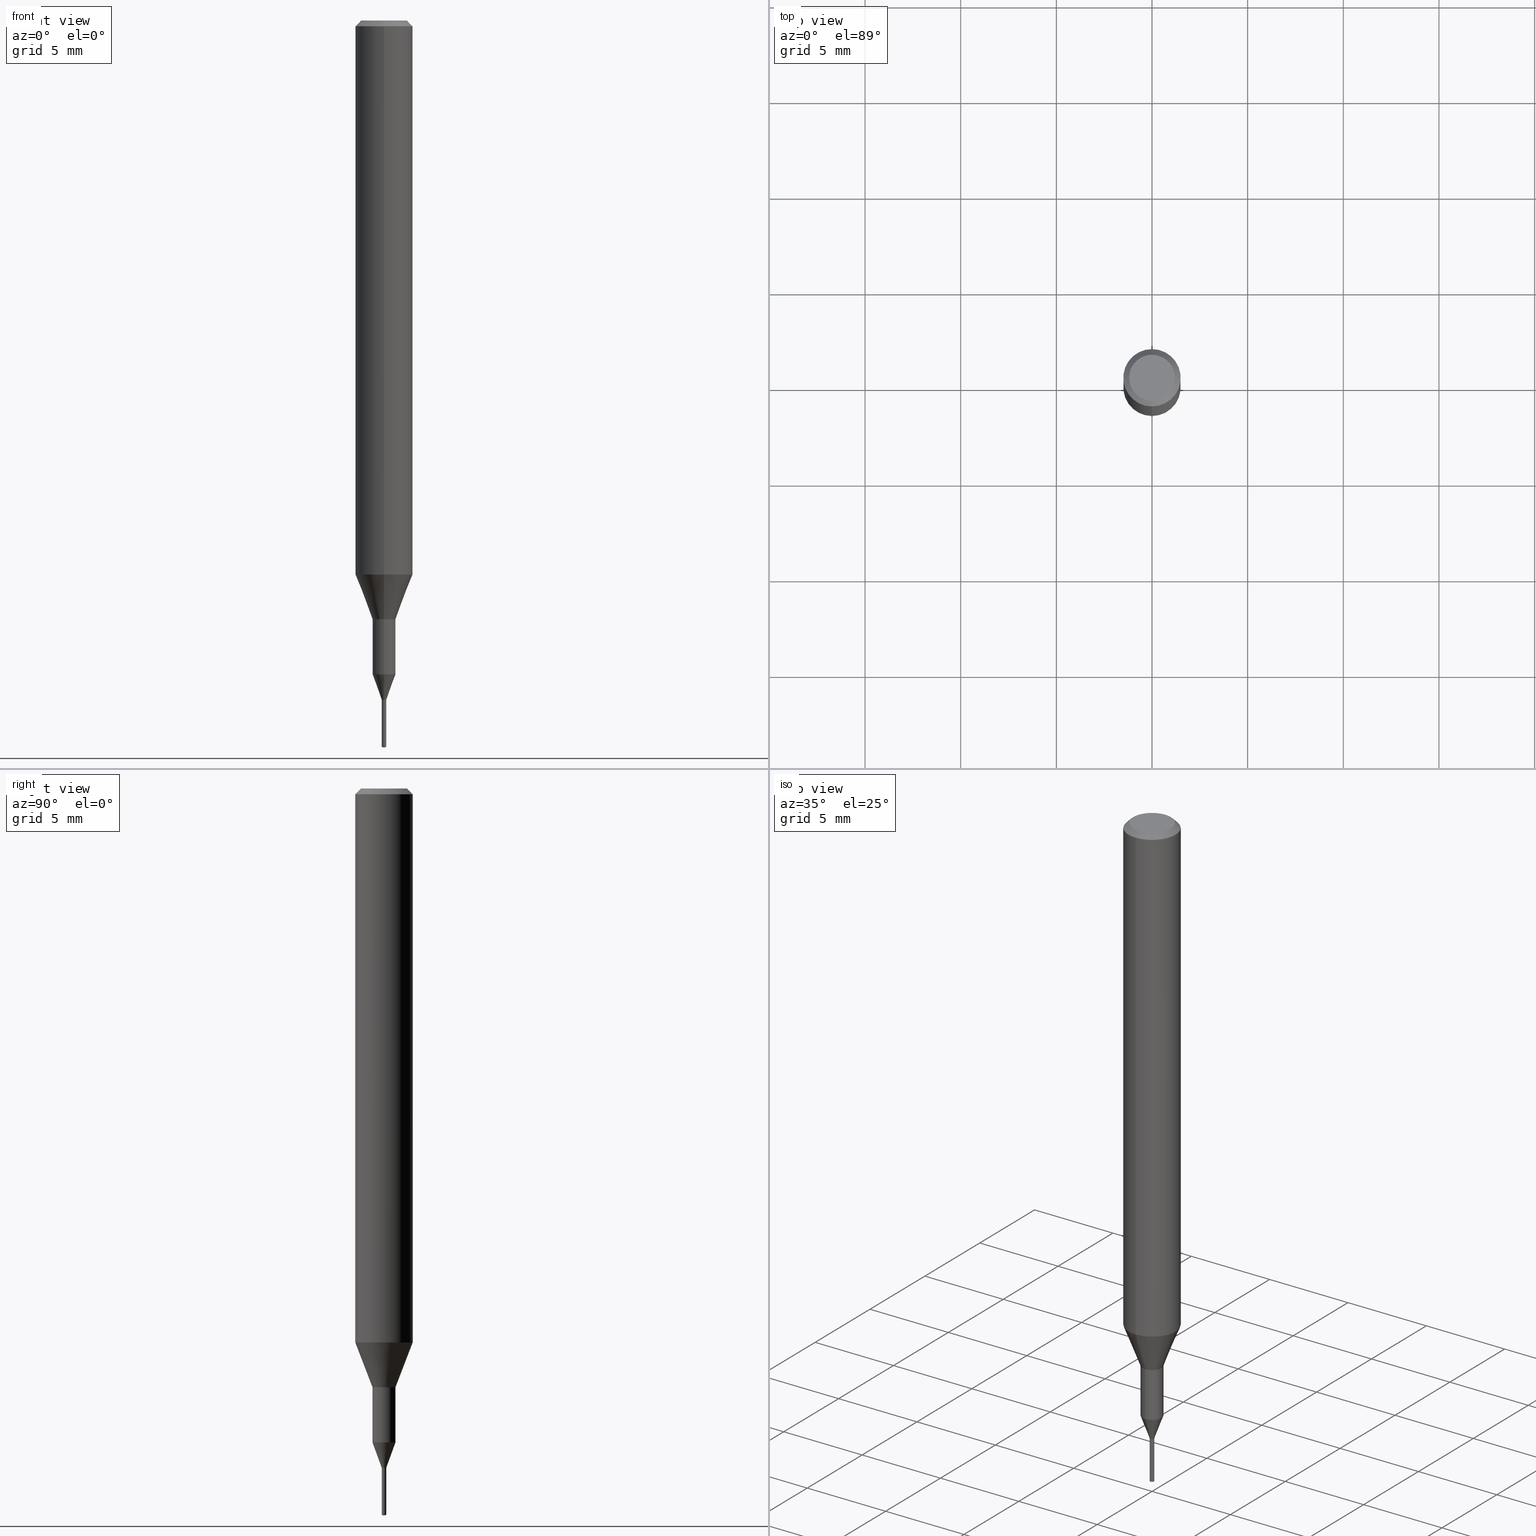
[diagram: canonical four-view strip — front | top / right | iso, engineering-drawing reading convention]
A machine part, canonical four-view strip (front | top / right | iso — engineering-drawing reading convention). The complete STEP part file that produces these views, byte-faithful:
ISO-10303-21;
HEADER;
FILE_DESCRIPTION(('no description'),'unknown implementation level');
FILE_NAME('C-UMD2024-025-Huellk.stp','  ',('CIMSOURCE GmbH'),('CADClick - KiM GmbH - www.kimweb.de'),'unknown preprocess','ACIS','unknown authorization');
FILE_SCHEMA(('automotive_design'));
ENDSEC;
DATA;
#1=MECHANICAL_DESIGN_GEOMETRIC_PRESENTATION_REPRESENTATION(' ',(#14,#15,#16,#17,#18,#19,#20,#21,#22,#23,#24,#25,#26,#27,#28,#29,#30,#31,#32,#33,#34,#35,#36,#37,#38,#39,#40,#41,#42,#43,#44,#45,#46,#47,#48,#49,#50,#51,#52,#53,#54,#55,#56,#57,#58,#59,#60,#61,#62,#63,#64,#65,#66,#67,#68,#69,#70,#71,#72,#73,#74,#75,#76,#77,#78,#79,#80,#81,#82,#83,#84,#85,#86,#87,#88,#89,#90,#91,#92),#10);
#2=PRODUCT_DEFINITION_CONTEXT('',#93,'design');
#3=APPLICATION_PROTOCOL_DEFINITION('INTERNATIONAL STANDARD','automotive_design',1994,#93);
#4=PRODUCT_CATEGORY_RELATIONSHIP('NONE','NONE',#94,#95);
#5=SHAPE_DEFINITION_REPRESENTATION(#96,#97);
#6=PRODUCT_DEFINITION_CONTEXT('',#98,'design');
#7=APPLICATION_PROTOCOL_DEFINITION('INTERNATIONAL STANDARD','automotive_design',1994,#98);
#8=PRODUCT_CATEGORY_RELATIONSHIP('NONE','NONE',#99,#100);
#9=SHAPE_DEFINITION_REPRESENTATION(#101,#102);
#10= (GEOMETRIC_REPRESENTATION_CONTEXT(3)GLOBAL_UNCERTAINTY_ASSIGNED_CONTEXT((#105))GLOBAL_UNIT_ASSIGNED_CONTEXT((#107,#108,#109))REPRESENTATION_CONTEXT('NONE','WORKSPACE'));
#14=STYLED_ITEM('',(#111),#112);
#15=STYLED_ITEM('',(#113),#114);
#16=STYLED_ITEM('',(#115),#116);
#17=STYLED_ITEM('',(#117),#118);
#18=STYLED_ITEM('',(#119),#120);
#19=STYLED_ITEM('',(#121),#122);
#20=STYLED_ITEM('',(#123),#124);
#21=STYLED_ITEM('',(#125),#126);
#22=STYLED_ITEM('',(#127),#128);
#23=STYLED_ITEM('',(#129),#130);
#24=STYLED_ITEM('',(#131),#132);
#25=STYLED_ITEM('',(#133),#134);
#26=STYLED_ITEM('',(#135),#136);
#27=STYLED_ITEM('',(#137),#138);
#28=STYLED_ITEM('',(#139),#140);
#29=STYLED_ITEM('',(#141),#142);
#30=STYLED_ITEM('',(#143),#144);
#31=STYLED_ITEM('',(#145),#146);
#32=STYLED_ITEM('',(#147),#148);
#33=STYLED_ITEM('',(#149),#150);
#34=STYLED_ITEM('',(#151),#152);
#35=STYLED_ITEM('',(#153),#154);
#36=STYLED_ITEM('',(#155),#156);
#37=STYLED_ITEM('',(#157),#158);
#38=STYLED_ITEM('',(#159),#160);
#39=STYLED_ITEM('',(#161),#162);
#40=STYLED_ITEM('',(#163),#164);
#41=STYLED_ITEM('',(#165),#166);
#42=STYLED_ITEM('',(#167),#168);
#43=STYLED_ITEM('',(#169),#170);
#44=STYLED_ITEM('',(#171),#172);
#45=STYLED_ITEM('',(#173),#174);
#46=STYLED_ITEM('',(#175),#176);
#47=STYLED_ITEM('',(#177),#178);
#48=STYLED_ITEM('',(#179),#180);
#49=STYLED_ITEM('',(#181),#182);
#50=STYLED_ITEM('',(#183),#184);
#51=STYLED_ITEM('',(#185),#186);
#52=STYLED_ITEM('',(#187),#188);
#53=STYLED_ITEM('',(#189),#190);
#54=STYLED_ITEM('',(#191),#192);
#55=STYLED_ITEM('',(#193),#194);
#56=STYLED_ITEM('',(#195),#196);
#57=STYLED_ITEM('',(#197),#198);
#58=STYLED_ITEM('',(#199),#200);
#59=STYLED_ITEM('',(#201),#202);
#60=STYLED_ITEM('',(#203),#204);
#61=STYLED_ITEM('',(#205),#206);
#62=STYLED_ITEM('',(#207),#208);
#63=STYLED_ITEM('',(#209),#210);
#64=STYLED_ITEM('',(#211),#212);
#65=STYLED_ITEM('',(#213),#214);
#66=STYLED_ITEM('',(#215),#216);
#67=STYLED_ITEM('',(#217),#218);
#68=STYLED_ITEM('',(#219),#220);
#69=STYLED_ITEM('',(#221),#222);
#70=STYLED_ITEM('',(#223),#224);
#71=STYLED_ITEM('',(#225),#226);
#72=STYLED_ITEM('',(#227),#228);
#73=STYLED_ITEM('',(#229),#230);
#74=STYLED_ITEM('',(#231),#232);
#75=STYLED_ITEM('',(#233),#234);
#76=STYLED_ITEM('',(#235),#236);
#77=STYLED_ITEM('',(#237),#238);
#78=STYLED_ITEM('',(#239),#240);
#79=STYLED_ITEM('',(#241),#242);
#80=STYLED_ITEM('',(#243),#244);
#81=STYLED_ITEM('',(#245),#246);
#82=STYLED_ITEM('',(#247),#248);
#83=STYLED_ITEM('',(#249),#250);
#84=STYLED_ITEM('',(#251),#252);
#85=STYLED_ITEM('',(#253),#254);
#86=STYLED_ITEM('',(#255),#256);
#87=STYLED_ITEM('',(#257),#258);
#88=STYLED_ITEM('',(#259),#260);
#89=STYLED_ITEM('',(#261),#262);
#90=STYLED_ITEM('',(#263),#264);
#91=STYLED_ITEM('',(#265),#266);
#92=STYLED_ITEM('',(#267),#268);
#93=APPLICATION_CONTEXT(' ');
#94=PRODUCT_CATEGORY('part','NONE');
#95=PRODUCT_RELATED_PRODUCT_CATEGORY('detail',' ',(#269));
#96=PRODUCT_DEFINITION_SHAPE('NONE','NONE',#270);
#97=ADVANCED_BREP_SHAPE_REPRESENTATION('1',(#254,#271),#10);
#98=APPLICATION_CONTEXT(' ');
#99=PRODUCT_CATEGORY('part','NONE');
#100=PRODUCT_RELATED_PRODUCT_CATEGORY('detail',' ',(#272));
#101=PRODUCT_DEFINITION_SHAPE('NONE','NONE',#273);
#102=ADVANCED_BREP_SHAPE_REPRESENTATION('2',(#168,#274),#10);
#105=UNCERTAINTY_MEASURE_WITH_UNIT(LENGTH_MEASURE(1.0E-006),#107,'','');
#107= (CONVERSION_BASED_UNIT('MILLIMETRE',#277)LENGTH_UNIT()NAMED_UNIT(#280));
#108= (NAMED_UNIT(#282)PLANE_ANGLE_UNIT()SI_UNIT($,.RADIAN.));
#109= (NAMED_UNIT(#282)SOLID_ANGLE_UNIT()SI_UNIT($,.STERADIAN.));
#111=PRESENTATION_STYLE_ASSIGNMENT((#288));
#112=ADVANCED_FACE('',(#289),#290,.T.);
#113=PRESENTATION_STYLE_ASSIGNMENT((#291));
#114=VERTEX_POINT('',#292);
#115=PRESENTATION_STYLE_ASSIGNMENT((#293));
#116=VERTEX_POINT('',#294);
#117=PRESENTATION_STYLE_ASSIGNMENT((#295));
#118=VERTEX_POINT('',#296);
#119=PRESENTATION_STYLE_ASSIGNMENT((#297));
#120=VERTEX_POINT('',#298);
#121=PRESENTATION_STYLE_ASSIGNMENT((#299));
#122=ADVANCED_FACE('',(#300),#301,.T.);
#123=PRESENTATION_STYLE_ASSIGNMENT((#302));
#124=ADVANCED_FACE('',(#303),#304,.T.);
#125=PRESENTATION_STYLE_ASSIGNMENT((#305));
#126=ADVANCED_FACE('',(#306),#307,.T.);
#127=PRESENTATION_STYLE_ASSIGNMENT((#308));
#128=VERTEX_POINT('',#309);
#129=PRESENTATION_STYLE_ASSIGNMENT((#310));
#130=EDGE_CURVE('',#114,#120,#311,.T.);
#131=PRESENTATION_STYLE_ASSIGNMENT((#312));
#132=ADVANCED_FACE('',(#313),#314,.T.);
#133=PRESENTATION_STYLE_ASSIGNMENT((#315));
#134=ADVANCED_FACE('',(#316),#317,.T.);
#135=PRESENTATION_STYLE_ASSIGNMENT((#318));
#136=ADVANCED_FACE('',(#319),#320,.T.);
#137=PRESENTATION_STYLE_ASSIGNMENT((#321));
#138=EDGE_CURVE('',#260,#250,#322,.T.);
#139=PRESENTATION_STYLE_ASSIGNMENT((#323));
#140=VERTEX_POINT('',#324);
#141=PRESENTATION_STYLE_ASSIGNMENT((#325));
#142=ADVANCED_FACE('',(#326),#327,.T.);
#143=PRESENTATION_STYLE_ASSIGNMENT((#328));
#144=EDGE_CURVE('',#176,#128,#329,.T.);
#145=PRESENTATION_STYLE_ASSIGNMENT((#330));
#146=ADVANCED_FACE('',(#331),#332,.T.);
#147=PRESENTATION_STYLE_ASSIGNMENT((#333));
#148=VERTEX_POINT('',#334);
#149=PRESENTATION_STYLE_ASSIGNMENT((#335));
#150=EDGE_CURVE('',#184,#190,#336,.T.);
#151=PRESENTATION_STYLE_ASSIGNMENT((#337));
#152=ADVANCED_FACE('',(#338),#339,.T.);
#153=PRESENTATION_STYLE_ASSIGNMENT((#340));
#154=VERTEX_POINT('',#341);
#155=PRESENTATION_STYLE_ASSIGNMENT((#342));
#156=EDGE_CURVE('',#228,#186,#343,.T.);
#157=PRESENTATION_STYLE_ASSIGNMENT((#344));
#158=ADVANCED_FACE('',(#345),#346,.T.);
#159=PRESENTATION_STYLE_ASSIGNMENT((#347));
#160=EDGE_CURVE('',#266,#148,#348,.T.);
#161=PRESENTATION_STYLE_ASSIGNMENT((#349));
#162=ADVANCED_FACE('',(#350),#351,.T.);
#163=PRESENTATION_STYLE_ASSIGNMENT((#352));
#164=EDGE_CURVE('',#214,#260,#353,.T.);
#165=PRESENTATION_STYLE_ASSIGNMENT((#354));
#166=EDGE_CURVE('',#140,#196,#355,.T.);
#167=PRESENTATION_STYLE_ASSIGNMENT((#356));
#168=MANIFOLD_SOLID_BREP('2',#357);
#169=PRESENTATION_STYLE_ASSIGNMENT((#358));
#170=ADVANCED_FACE('',(#359),#360,.T.);
#171=PRESENTATION_STYLE_ASSIGNMENT((#361));
#172=VERTEX_POINT('',#362);
#173=PRESENTATION_STYLE_ASSIGNMENT((#363));
#174=EDGE_CURVE('',#186,#228,#364,.T.);
#175=PRESENTATION_STYLE_ASSIGNMENT((#365));
#176=VERTEX_POINT('',#366);
#177=PRESENTATION_STYLE_ASSIGNMENT((#367));
#178=EDGE_CURVE('',#250,#240,#368,.T.);
#179=PRESENTATION_STYLE_ASSIGNMENT((#369));
#180=EDGE_CURVE('',#116,#172,#370,.T.);
#181=PRESENTATION_STYLE_ASSIGNMENT((#371));
#182=EDGE_CURVE('',#196,#140,#372,.T.);
#183=PRESENTATION_STYLE_ASSIGNMENT((#373));
#184=VERTEX_POINT('',#374);
#185=PRESENTATION_STYLE_ASSIGNMENT((#375));
#186=VERTEX_POINT('',#376);
#187=PRESENTATION_STYLE_ASSIGNMENT((#377));
#188=EDGE_CURVE('',#240,#260,#378,.T.);
#189=PRESENTATION_STYLE_ASSIGNMENT((#379));
#190=VERTEX_POINT('',#380);
#191=PRESENTATION_STYLE_ASSIGNMENT((#381));
#192=ADVANCED_FACE('',(#382),#383,.T.);
#193=PRESENTATION_STYLE_ASSIGNMENT((#384));
#194=EDGE_CURVE('',#172,#148,#385,.T.);
#195=PRESENTATION_STYLE_ASSIGNMENT((#386));
#196=VERTEX_POINT('',#387);
#197=PRESENTATION_STYLE_ASSIGNMENT((#388));
#198=EDGE_CURVE('',#190,#184,#389,.T.);
#199=PRESENTATION_STYLE_ASSIGNMENT((#390));
#200=EDGE_CURVE('',#128,#184,#391,.T.);
#201=PRESENTATION_STYLE_ASSIGNMENT((#392));
#202=EDGE_CURVE('',#240,#118,#393,.T.);
#203=PRESENTATION_STYLE_ASSIGNMENT((#394));
#204=ADVANCED_FACE('',(#395),#396,.T.);
#205=PRESENTATION_STYLE_ASSIGNMENT((#397));
#206=EDGE_CURVE('',#148,#196,#398,.T.);
#207=PRESENTATION_STYLE_ASSIGNMENT((#399));
#208=EDGE_CURVE('',#190,#176,#400,.T.);
#209=PRESENTATION_STYLE_ASSIGNMENT((#401));
#210=EDGE_CURVE('',#248,#154,#402,.T.);
#211=PRESENTATION_STYLE_ASSIGNMENT((#403));
#212=EDGE_CURVE('',#120,#214,#404,.T.);
#213=PRESENTATION_STYLE_ASSIGNMENT((#405));
#214=VERTEX_POINT('',#406);
#215=PRESENTATION_STYLE_ASSIGNMENT((#407));
#216=EDGE_CURVE('',#266,#248,#408,.T.);
#217=PRESENTATION_STYLE_ASSIGNMENT((#409));
#218=ADVANCED_FACE('',(#410),#411,.T.);
#219=PRESENTATION_STYLE_ASSIGNMENT((#412));
#220=EDGE_CURVE('',#154,#116,#413,.T.);
#221=PRESENTATION_STYLE_ASSIGNMENT((#414));
#222=EDGE_CURVE('',#148,#266,#415,.T.);
#223=PRESENTATION_STYLE_ASSIGNMENT((#416));
#224=EDGE_CURVE('',#116,#154,#417,.T.);
#225=PRESENTATION_STYLE_ASSIGNMENT((#418));
#226=EDGE_CURVE('',#118,#214,#419,.T.);
#227=PRESENTATION_STYLE_ASSIGNMENT((#420));
#228=VERTEX_POINT('',#421);
#229=PRESENTATION_STYLE_ASSIGNMENT((#422));
#230=EDGE_CURVE('',#248,#172,#423,.T.);
#231=PRESENTATION_STYLE_ASSIGNMENT((#424));
#232=ADVANCED_FACE('',(#425),#426,.T.);
#233=PRESENTATION_STYLE_ASSIGNMENT((#427));
#234=EDGE_CURVE('',#140,#266,#428,.T.);
#235=PRESENTATION_STYLE_ASSIGNMENT((#429));
#236=EDGE_CURVE('',#128,#176,#430,.T.);
#237=PRESENTATION_STYLE_ASSIGNMENT((#431));
#238=ADVANCED_FACE('',(#432),#433,.T.);
#239=PRESENTATION_STYLE_ASSIGNMENT((#434));
#240=VERTEX_POINT('',#435);
#241=PRESENTATION_STYLE_ASSIGNMENT((#436));
#242=EDGE_CURVE('',#120,#114,#437,.T.);
#243=PRESENTATION_STYLE_ASSIGNMENT((#438));
#244=EDGE_CURVE('',#186,#128,#439,.T.);
#245=PRESENTATION_STYLE_ASSIGNMENT((#440));
#246=ADVANCED_FACE('',(#441,#442),#443,.T.);
#247=PRESENTATION_STYLE_ASSIGNMENT((#444));
#248=VERTEX_POINT('',#445);
#249=PRESENTATION_STYLE_ASSIGNMENT((#446));
#250=VERTEX_POINT('',#447);
#251=PRESENTATION_STYLE_ASSIGNMENT((#448));
#252=EDGE_CURVE('',#214,#118,#449,.T.);
#253=PRESENTATION_STYLE_ASSIGNMENT((#450));
#254=MANIFOLD_SOLID_BREP('1',#451);
#255=PRESENTATION_STYLE_ASSIGNMENT((#452));
#256=EDGE_CURVE('',#118,#114,#453,.T.);
#257=PRESENTATION_STYLE_ASSIGNMENT((#454));
#258=EDGE_CURVE('',#260,#240,#455,.T.);
#259=PRESENTATION_STYLE_ASSIGNMENT((#456));
#260=VERTEX_POINT('',#457);
#261=PRESENTATION_STYLE_ASSIGNMENT((#458));
#262=EDGE_CURVE('',#176,#228,#459,.T.);
#263=PRESENTATION_STYLE_ASSIGNMENT((#460));
#264=EDGE_CURVE('',#172,#248,#461,.T.);
#265=PRESENTATION_STYLE_ASSIGNMENT((#462));
#266=VERTEX_POINT('',#463);
#267=PRESENTATION_STYLE_ASSIGNMENT((#464));
#268=ADVANCED_FACE('',(#465),#466,.T.);
#269=PRODUCT('1','1','PART-1-DESC',(#467));
#270=PRODUCT_DEFINITION('NONE','NONE',#468,#2);
#271=AXIS2_PLACEMENT_3D('',#469,#470,#471);
#272=PRODUCT('2','2','PART-2-DESC',(#472));
#273=PRODUCT_DEFINITION('NONE','NONE',#473,#6);
#274=AXIS2_PLACEMENT_3D('',#474,#475,#476);
#277=LENGTH_MEASURE_WITH_UNIT(LENGTH_MEASURE(1.0),#477);
#280=DIMENSIONAL_EXPONENTS(1.0,0.0,0.0,0.0,0.0,0.0,0.0);
#282=DIMENSIONAL_EXPONENTS(0.0,0.0,0.0,0.0,0.0,0.0,0.0);
#288=SURFACE_STYLE_USAGE(.BOTH.,#478);
#289=FACE_OUTER_BOUND('',#479,.T.);
#290=CONICAL_SURFACE('',#480,0.06,1.30899696303431);
#291=POINT_STYLE(' ',#481,POSITIVE_LENGTH_MEASURE(1.0E-006),#482);
#292=CARTESIAN_POINT('',(0.121036391205459,1.48221933713936E-017,-35.4999));
#293=POINT_STYLE(' ',#483,POSITIVE_LENGTH_MEASURE(1.0E-006),#484);
#294=CARTESIAN_POINT('',(7.34763812293426E-017,-0.6,-31.3));
#295=POINT_STYLE(' ',#485,POSITIVE_LENGTH_MEASURE(1.0E-006),#486);
#296=CARTESIAN_POINT('',(0.12,1.46952762458685E-017,-35.5));
#297=POINT_STYLE(' ',#487,POSITIVE_LENGTH_MEASURE(1.0E-006),#488);
#298=CARTESIAN_POINT('',(-0.121036391205459,0.0,-35.4999));
#299=SURFACE_STYLE_USAGE(.BOTH.,#489);
#300=FACE_OUTER_BOUND('',#490,.T.);
#301=CONICAL_SURFACE('',#491,1.35,0.785398163397447);
#302=SURFACE_STYLE_USAGE(.BOTH.,#492);
#303=FACE_OUTER_BOUND('',#493,.T.);
#304=CYLINDRICAL_SURFACE('',#494,0.59995);
#305=SURFACE_STYLE_USAGE(.BOTH.,#495);
#306=FACE_OUTER_BOUND('',#496,.T.);
#307=CONICAL_SURFACE('',#497,0.359993193707354,0.348981000659122);
#308=POINT_STYLE(' ',#498,POSITIVE_LENGTH_MEASURE(1.0E-006),#499);
#309=CARTESIAN_POINT('',(7.34702581975735E-017,-0.59995,-34.181));
#310=CURVE_STYLE('',#500,POSITIVE_LENGTH_MEASURE(1.0E-006),#501);
#311=CIRCLE('',#502,0.121036391205459);
#312=SURFACE_STYLE_USAGE(.BOTH.,#503);
#313=FACE_OUTER_BOUND('',#504,.T.);
#314=CONICAL_SURFACE('',#505,0.359993193707354,0.348981000659122);
#315=SURFACE_STYLE_USAGE(.BOTH.,#506);
#316=FACE_OUTER_BOUND('',#507,.T.);
#317=PLANE('',#508);
#318=SURFACE_STYLE_USAGE(.BOTH.,#509);
#319=FACE_OUTER_BOUND('',#510,.T.);
#320=CONICAL_SURFACE('',#511,1.05,0.366459241971866);
#321=CURVE_STYLE('',#512,POSITIVE_LENGTH_MEASURE(1.0E-006),#513);
#322=LINE('',#514,#515);
#323=POINT_STYLE(' ',#516,POSITIVE_LENGTH_MEASURE(1.0E-006),#517);
#324=CARTESIAN_POINT('',(0.0,1.2,0.0));
#325=SURFACE_STYLE_USAGE(.BOTH.,#518);
#326=FACE_OUTER_BOUND('',#519,.T.);
#327=CONICAL_SURFACE('',#520,1.35,0.785398163397447);
#328=CURVE_STYLE('',#521,POSITIVE_LENGTH_MEASURE(1.0E-006),#522);
#329=CIRCLE('',#523,0.59995);
#330=SURFACE_STYLE_USAGE(.BOTH.,#524);
#331=FACE_OUTER_BOUND('',#525,.T.);
#332=CONICAL_SURFACE('',#526,1.05,0.366459241971866);
#333=POINT_STYLE(' ',#527,POSITIVE_LENGTH_MEASURE(1.0E-006),#528);
#334=CARTESIAN_POINT('',(1.83690953073357E-016,-1.5,-0.300000000000001));
#335=CURVE_STYLE('',#529,POSITIVE_LENGTH_MEASURE(1.0E-006),#530);
#336=CIRCLE('',#531,0.59995);
#337=SURFACE_STYLE_USAGE(.BOTH.,#532);
#338=FACE_OUTER_BOUND('',#533,.T.);
#339=CONICAL_SURFACE('',#534,0.120518195602729,1.47460544232733);
#340=POINT_STYLE(' ',#535,POSITIVE_LENGTH_MEASURE(1.0E-006),#536);
#341=CARTESIAN_POINT('',(0.0,0.6,-31.3));
#342=CURVE_STYLE('',#537,POSITIVE_LENGTH_MEASURE(1.0E-006),#538);
#343=CIRCLE('',#539,0.120036387414708);
#344=SURFACE_STYLE_USAGE(.BOTH.,#540);
#345=FACE_OUTER_BOUND('',#541,.T.);
#346=PLANE('',#542);
#347=CURVE_STYLE('',#543,POSITIVE_LENGTH_MEASURE(1.0E-006),#544);
#348=CIRCLE('',#545,1.5);
#349=SURFACE_STYLE_USAGE(.BOTH.,#546);
#350=FACE_OUTER_BOUND('',#547,.T.);
#351=CYLINDRICAL_SURFACE('',#548,0.12);
#352=CURVE_STYLE('',#549,POSITIVE_LENGTH_MEASURE(1.0E-006),#550);
#353=LINE('',#551,#552);
#354=CURVE_STYLE('',#553,POSITIVE_LENGTH_MEASURE(1.0E-006),#554);
#355=CIRCLE('',#555,1.2);
#356=SURFACE_STYLE_USAGE(.BOTH.,#556);
#357=CLOSED_SHELL('',(#238,#204,#152,#158,#170,#162,#112));
#358=SURFACE_STYLE_USAGE(.BOTH.,#557);
#359=FACE_OUTER_BOUND('',#558,.T.);
#360=CONICAL_SURFACE('',#559,0.120518195602729,1.47460544232733);
#361=POINT_STYLE(' ',#560,POSITIVE_LENGTH_MEASURE(1.0E-006),#561);
#362=CARTESIAN_POINT('',(1.83690953073357E-016,-1.5,-28.955));
#363=CURVE_STYLE('',#562,POSITIVE_LENGTH_MEASURE(1.0E-006),#563);
#364=CIRCLE('',#564,0.120036387414708);
#365=POINT_STYLE(' ',#565,POSITIVE_LENGTH_MEASURE(1.0E-006),#566);
#366=CARTESIAN_POINT('',(0.0,0.59995,-34.181));
#367=CURVE_STYLE('',#567,POSITIVE_LENGTH_MEASURE(1.0E-006),#568);
#368=LINE('',#569,#570);
#369=CURVE_STYLE('',#571,POSITIVE_LENGTH_MEASURE(1.0E-006),#572);
#370=LINE('',#573,#574);
#371=CURVE_STYLE('',#575,POSITIVE_LENGTH_MEASURE(1.0E-006),#576);
#372=CIRCLE('',#577,1.2);
#373=POINT_STYLE(' ',#578,POSITIVE_LENGTH_MEASURE(1.0E-006),#579);
#374=CARTESIAN_POINT('',(7.34702581975735E-017,-0.59995,-31.3));
#375=POINT_STYLE(' ',#580,POSITIVE_LENGTH_MEASURE(1.0E-006),#581);
#376=CARTESIAN_POINT('',(1.46997322717936E-017,-0.120036387414708,-35.4999));
#377=CURVE_STYLE('',#582,POSITIVE_LENGTH_MEASURE(1.0E-006),#583);
#378=CIRCLE('',#584,0.12);
#379=POINT_STYLE(' ',#585,POSITIVE_LENGTH_MEASURE(1.0E-006),#586);
#380=CARTESIAN_POINT('',(0.0,0.59995,-31.3));
#381=SURFACE_STYLE_USAGE(.BOTH.,#587);
#382=FACE_OUTER_BOUND('',#588,.T.);
#383=CYLINDRICAL_SURFACE('',#589,1.5);
#384=CURVE_STYLE('',#590,POSITIVE_LENGTH_MEASURE(1.0E-006),#591);
#385=LINE('',#592,#593);
#386=POINT_STYLE(' ',#594,POSITIVE_LENGTH_MEASURE(1.0E-006),#595);
#387=CARTESIAN_POINT('',(1.46952762458685E-016,-1.2,0.0));
#388=CURVE_STYLE('',#596,POSITIVE_LENGTH_MEASURE(1.0E-006),#597);
#389=CIRCLE('',#598,0.59995);
#390=CURVE_STYLE('',#599,POSITIVE_LENGTH_MEASURE(1.0E-006),#600);
#391=LINE('',#601,#602);
#392=CURVE_STYLE('',#603,POSITIVE_LENGTH_MEASURE(1.0E-006),#604);
#393=LINE('',#605,#606);
#394=SURFACE_STYLE_USAGE(.BOTH.,#607);
#395=FACE_OUTER_BOUND('',#608,.T.);
#396=CYLINDRICAL_SURFACE('',#609,0.12);
#397=CURVE_STYLE('',#610,POSITIVE_LENGTH_MEASURE(1.0E-006),#611);
#398=LINE('',#612,#613);
#399=CURVE_STYLE('',#614,POSITIVE_LENGTH_MEASURE(1.0E-006),#615);
#400=LINE('',#616,#617);
#401=CURVE_STYLE('',#618,POSITIVE_LENGTH_MEASURE(1.0E-006),#619);
#402=LINE('',#620,#621);
#403=CURVE_STYLE('',#622,POSITIVE_LENGTH_MEASURE(1.0E-006),#623);
#404=LINE('',#624,#625);
#405=POINT_STYLE(' ',#626,POSITIVE_LENGTH_MEASURE(1.0E-006),#627);
#406=CARTESIAN_POINT('',(-0.12,0.0,-35.5));
#407=CURVE_STYLE('',#628,POSITIVE_LENGTH_MEASURE(1.0E-006),#629);
#408=LINE('',#630,#631);
#409=SURFACE_STYLE_USAGE(.BOTH.,#632);
#410=FACE_OUTER_BOUND('',#633,.T.);
#411=PLANE('',#634);
#412=CURVE_STYLE('',#635,POSITIVE_LENGTH_MEASURE(1.0E-006),#636);
#413=CIRCLE('',#637,0.6);
#414=CURVE_STYLE('',#638,POSITIVE_LENGTH_MEASURE(1.0E-006),#639);
#415=CIRCLE('',#640,1.5);
#416=CURVE_STYLE('',#641,POSITIVE_LENGTH_MEASURE(1.0E-006),#642);
#417=CIRCLE('',#643,0.6);
#418=CURVE_STYLE('',#644,POSITIVE_LENGTH_MEASURE(1.0E-006),#645);
#419=CIRCLE('',#646,0.12);
#420=POINT_STYLE(' ',#647,POSITIVE_LENGTH_MEASURE(1.0E-006),#648);
#421=CARTESIAN_POINT('',(0.0,0.120036387414708,-35.4999));
#422=CURVE_STYLE('',#649,POSITIVE_LENGTH_MEASURE(1.0E-006),#650);
#423=CIRCLE('',#651,1.5);
#424=SURFACE_STYLE_USAGE(.BOTH.,#652);
#425=FACE_OUTER_BOUND('',#653,.T.);
#426=CYLINDRICAL_SURFACE('',#654,1.5);
#427=CURVE_STYLE('',#655,POSITIVE_LENGTH_MEASURE(1.0E-006),#656);
#428=LINE('',#657,#658);
#429=CURVE_STYLE('',#659,POSITIVE_LENGTH_MEASURE(1.0E-006),#660);
#430=CIRCLE('',#661,0.59995);
#431=SURFACE_STYLE_USAGE(.BOTH.,#662);
#432=FACE_OUTER_BOUND('',#663,.T.);
#433=CONICAL_SURFACE('',#664,0.06,1.30899696303431);
#434=POINT_STYLE(' ',#665,POSITIVE_LENGTH_MEASURE(1.0E-006),#666);
#435=CARTESIAN_POINT('',(0.12,1.46952762458685E-017,-37.9678461));
#436=CURVE_STYLE('',#667,POSITIVE_LENGTH_MEASURE(1.0E-006),#668);
#437=CIRCLE('',#669,0.121036391205459);
#438=CURVE_STYLE('',#670,POSITIVE_LENGTH_MEASURE(1.0E-006),#671);
#439=LINE('',#672,#673);
#440=SURFACE_STYLE_USAGE(.BOTH.,#674);
#441=FACE_BOUND('',#675,.T.);
#442=FACE_OUTER_BOUND('',#676,.T.);
#443=PLANE('',#677);
#444=POINT_STYLE(' ',#678,POSITIVE_LENGTH_MEASURE(1.0E-006),#679);
#445=CARTESIAN_POINT('',(0.0,1.5,-28.955));
#446=POINT_STYLE(' ',#680,POSITIVE_LENGTH_MEASURE(1.0E-006),#681);
#447=CARTESIAN_POINT('',(0.0,0.0,-38.0));
#448=CURVE_STYLE('',#682,POSITIVE_LENGTH_MEASURE(1.0E-006),#683);
#449=CIRCLE('',#684,0.12);
#450=SURFACE_STYLE_USAGE(.BOTH.,#685);
#451=CLOSED_SHELL('',(#126,#124,#146,#192,#142,#134,#122,#232,#136,#246,#268,#132,#218));
#452=CURVE_STYLE('',#686,POSITIVE_LENGTH_MEASURE(1.0E-006),#687);
#453=LINE('',#688,#689);
#454=CURVE_STYLE('',#690,POSITIVE_LENGTH_MEASURE(1.0E-006),#691);
#455=CIRCLE('',#692,0.12);
#456=POINT_STYLE(' ',#693,POSITIVE_LENGTH_MEASURE(1.0E-006),#694);
#457=CARTESIAN_POINT('',(-0.12,0.0,-37.9678461));
#458=CURVE_STYLE('',#695,POSITIVE_LENGTH_MEASURE(1.0E-006),#696);
#459=LINE('',#697,#698);
#460=CURVE_STYLE('',#699,POSITIVE_LENGTH_MEASURE(1.0E-006),#700);
#461=CIRCLE('',#701,1.5);
#462=POINT_STYLE(' ',#702,POSITIVE_LENGTH_MEASURE(1.0E-006),#703);
#463=CARTESIAN_POINT('',(0.0,1.5,-0.300000000000001));
#464=SURFACE_STYLE_USAGE(.BOTH.,#704);
#465=FACE_OUTER_BOUND('',#705,.T.);
#466=CYLINDRICAL_SURFACE('',#706,0.59995);
#467=PRODUCT_CONTEXT('',#93,'mechanical');
#468=PRODUCT_DEFINITION_FORMATION_WITH_SPECIFIED_SOURCE(' ','NONE',#269,.NOT_KNOWN.);
#469=CARTESIAN_POINT('',(0.0,0.0,0.0));
#470=DIRECTION('',(0.0,0.0,1.0));
#471=DIRECTION('',(1.0,0.0,0.0));
#472=PRODUCT_CONTEXT('',#98,'mechanical');
#473=PRODUCT_DEFINITION_FORMATION_WITH_SPECIFIED_SOURCE(' ','NONE',#272,.NOT_KNOWN.);
#474=CARTESIAN_POINT('',(0.0,0.0,0.0));
#475=DIRECTION('',(0.0,0.0,1.0));
#476=DIRECTION('',(1.0,0.0,0.0));
#477= (NAMED_UNIT(#280)LENGTH_UNIT()SI_UNIT(.MILLI.,.METRE.));
#478=SURFACE_SIDE_STYLE('',(#708));
#479=EDGE_LOOP('',(#709,#710,#711));
#480=AXIS2_PLACEMENT_3D('',#712,#713,#714);
#481=PRE_DEFINED_MARKER('');
#482=COLOUR_RGB('',0.800000011920929,0.800000011920929,0.800000011920929);
#483=PRE_DEFINED_MARKER('');
#484=COLOUR_RGB('',0.498039215803146,0.498039215803146,0.498039215803146);
#485=PRE_DEFINED_MARKER('');
#486=COLOUR_RGB('',0.800000011920929,0.800000011920929,0.800000011920929);
#487=PRE_DEFINED_MARKER('');
#488=COLOUR_RGB('',0.800000011920929,0.800000011920929,0.800000011920929);
#489=SURFACE_SIDE_STYLE('',(#715));
#490=EDGE_LOOP('',(#716,#717,#718,#719));
#491=AXIS2_PLACEMENT_3D('',#720,#721,#722);
#492=SURFACE_SIDE_STYLE('',(#723));
#493=EDGE_LOOP('',(#724,#725,#726,#727));
#494=AXIS2_PLACEMENT_3D('',#728,#729,#730);
#495=SURFACE_SIDE_STYLE('',(#731));
#496=EDGE_LOOP('',(#732,#733,#734,#735));
#497=AXIS2_PLACEMENT_3D('',#736,#737,#738);
#498=PRE_DEFINED_MARKER('');
#499=COLOUR_RGB('',0.498039215803146,0.498039215803146,0.498039215803146);
#500=DRAUGHTING_PRE_DEFINED_CURVE_FONT('continuous');
#501=COLOUR_RGB('',0.800000011920929,0.800000011920929,0.800000011920929);
#502=AXIS2_PLACEMENT_3D('',#739,#740,#741);
#503=SURFACE_SIDE_STYLE('',(#742));
#504=EDGE_LOOP('',(#743,#744,#745,#746));
#505=AXIS2_PLACEMENT_3D('',#747,#748,#749);
#506=SURFACE_SIDE_STYLE('',(#750));
#507=EDGE_LOOP('',(#751,#752));
#508=AXIS2_PLACEMENT_3D('',#753,#754,#755);
#509=SURFACE_SIDE_STYLE('',(#756));
#510=EDGE_LOOP('',(#757,#758,#759,#760));
#511=AXIS2_PLACEMENT_3D('',#761,#762,#763);
#512=DRAUGHTING_PRE_DEFINED_CURVE_FONT('continuous');
#513=COLOUR_RGB('',0.800000011920929,0.800000011920929,0.800000011920929);
#514=CARTESIAN_POINT('',(-0.06,-7.34763812293426E-018,-37.98392305));
#515=VECTOR('',#764,1.0);
#516=PRE_DEFINED_MARKER('');
#517=COLOUR_RGB('',0.498039215803146,0.498039215803146,0.498039215803146);
#518=SURFACE_SIDE_STYLE('',(#765));
#519=EDGE_LOOP('',(#766,#767,#768,#769));
#520=AXIS2_PLACEMENT_3D('',#770,#771,#772);
#521=DRAUGHTING_PRE_DEFINED_CURVE_FONT('continuous');
#522=COLOUR_RGB('',0.498039215803146,0.498039215803146,0.498039215803146);
#523=AXIS2_PLACEMENT_3D('',#773,#774,#775);
#524=SURFACE_SIDE_STYLE('',(#776));
#525=EDGE_LOOP('',(#777,#778,#779,#780));
#526=AXIS2_PLACEMENT_3D('',#781,#782,#783);
#527=PRE_DEFINED_MARKER('');
#528=COLOUR_RGB('',0.498039215803146,0.498039215803146,0.498039215803146);
#529=DRAUGHTING_PRE_DEFINED_CURVE_FONT('continuous');
#530=COLOUR_RGB('',0.498039215803146,0.498039215803146,0.498039215803146);
#531=AXIS2_PLACEMENT_3D('',#784,#785,#786);
#532=SURFACE_SIDE_STYLE('',(#787));
#533=EDGE_LOOP('',(#788,#789,#790,#791));
#534=AXIS2_PLACEMENT_3D('',#792,#793,#794);
#535=PRE_DEFINED_MARKER('');
#536=COLOUR_RGB('',0.498039215803146,0.498039215803146,0.498039215803146);
#537=DRAUGHTING_PRE_DEFINED_CURVE_FONT('continuous');
#538=COLOUR_RGB('',0.498039215803146,0.498039215803146,0.498039215803146);
#539=AXIS2_PLACEMENT_3D('',#795,#796,#797);
#540=SURFACE_SIDE_STYLE('',(#798));
#541=EDGE_LOOP('',(#799,#800));
#542=AXIS2_PLACEMENT_3D('',#801,#802,#803);
#543=DRAUGHTING_PRE_DEFINED_CURVE_FONT('continuous');
#544=COLOUR_RGB('',0.498039215803146,0.498039215803146,0.498039215803146);
#545=AXIS2_PLACEMENT_3D('',#804,#805,#806);
#546=SURFACE_SIDE_STYLE('',(#807));
#547=EDGE_LOOP('',(#808,#809,#810,#811));
#548=AXIS2_PLACEMENT_3D('',#812,#813,#814);
#549=DRAUGHTING_PRE_DEFINED_CURVE_FONT('continuous');
#550=COLOUR_RGB('',0.800000011920929,0.800000011920929,0.800000011920929);
#551=CARTESIAN_POINT('',(-0.12,-1.46952762458685E-017,-36.73392305));
#552=VECTOR('',#815,1.0);
#553=DRAUGHTING_PRE_DEFINED_CURVE_FONT('continuous');
#554=COLOUR_RGB('',0.498039215803146,0.498039215803146,0.498039215803146);
#555=AXIS2_PLACEMENT_3D('',#816,#817,#818);
#556=SURFACE_SIDE_STYLE('',(#819));
#557=SURFACE_SIDE_STYLE('',(#820));
#558=EDGE_LOOP('',(#821,#822,#823,#824));
#559=AXIS2_PLACEMENT_3D('',#825,#826,#827);
#560=PRE_DEFINED_MARKER('');
#561=COLOUR_RGB('',0.498039215803146,0.498039215803146,0.498039215803146);
#562=DRAUGHTING_PRE_DEFINED_CURVE_FONT('continuous');
#563=COLOUR_RGB('',0.498039215803146,0.498039215803146,0.498039215803146);
#564=AXIS2_PLACEMENT_3D('',#828,#829,#830);
#565=PRE_DEFINED_MARKER('');
#566=COLOUR_RGB('',0.498039215803146,0.498039215803146,0.498039215803146);
#567=DRAUGHTING_PRE_DEFINED_CURVE_FONT('continuous');
#568=COLOUR_RGB('',0.800000011920929,0.800000011920929,0.800000011920929);
#569=CARTESIAN_POINT('',(0.06,7.34763812293426E-018,-37.98392305));
#570=VECTOR('',#831,1.0);
#571=DRAUGHTING_PRE_DEFINED_CURVE_FONT('continuous');
#572=COLOUR_RGB('',0.498039215803146,0.498039215803146,0.498039215803146);
#573=CARTESIAN_POINT('',(1.2858366715135E-016,-1.05,-30.1275));
#574=VECTOR('',#832,1.0);
#575=DRAUGHTING_PRE_DEFINED_CURVE_FONT('continuous');
#576=COLOUR_RGB('',0.498039215803146,0.498039215803146,0.498039215803146);
#577=AXIS2_PLACEMENT_3D('',#833,#834,#835);
#578=PRE_DEFINED_MARKER('');
#579=COLOUR_RGB('',0.498039215803146,0.498039215803146,0.498039215803146);
#580=PRE_DEFINED_MARKER('');
#581=COLOUR_RGB('',0.498039215803146,0.498039215803146,0.498039215803146);
#582=DRAUGHTING_PRE_DEFINED_CURVE_FONT('continuous');
#583=COLOUR_RGB('',0.800000011920929,0.800000011920929,0.800000011920929);
#584=AXIS2_PLACEMENT_3D('',#836,#837,#838);
#585=PRE_DEFINED_MARKER('');
#586=COLOUR_RGB('',0.498039215803146,0.498039215803146,0.498039215803146);
#587=SURFACE_SIDE_STYLE('',(#839));
#588=EDGE_LOOP('',(#840,#841,#842,#843));
#589=AXIS2_PLACEMENT_3D('',#844,#845,#846);
#590=DRAUGHTING_PRE_DEFINED_CURVE_FONT('continuous');
#591=COLOUR_RGB('',0.498039215803146,0.498039215803146,0.498039215803146);
#592=CARTESIAN_POINT('',(1.83690953073357E-016,-1.5,-14.6275));
#593=VECTOR('',#847,1.0);
#594=PRE_DEFINED_MARKER('');
#595=COLOUR_RGB('',0.498039215803146,0.498039215803146,0.498039215803146);
#596=DRAUGHTING_PRE_DEFINED_CURVE_FONT('continuous');
#597=COLOUR_RGB('',0.498039215803146,0.498039215803146,0.498039215803146);
#598=AXIS2_PLACEMENT_3D('',#848,#849,#850);
#599=DRAUGHTING_PRE_DEFINED_CURVE_FONT('continuous');
#600=COLOUR_RGB('',0.498039215803146,0.498039215803146,0.498039215803146);
#601=CARTESIAN_POINT('',(7.34702581975735E-017,-0.59995,-32.7405));
#602=VECTOR('',#851,1.0);
#603=DRAUGHTING_PRE_DEFINED_CURVE_FONT('continuous');
#604=COLOUR_RGB('',0.800000011920929,0.800000011920929,0.800000011920929);
#605=CARTESIAN_POINT('',(0.12,1.46952762458685E-017,-36.73392305));
#606=VECTOR('',#852,1.0);
#607=SURFACE_SIDE_STYLE('',(#853));
#608=EDGE_LOOP('',(#854,#855,#856,#857));
#609=AXIS2_PLACEMENT_3D('',#858,#859,#860);
#610=DRAUGHTING_PRE_DEFINED_CURVE_FONT('continuous');
#611=COLOUR_RGB('',0.498039215803146,0.498039215803146,0.498039215803146);
#612=CARTESIAN_POINT('',(1.65321857766021E-016,-1.35,-0.149999999999999));
#613=VECTOR('',#861,1.0);
#614=DRAUGHTING_PRE_DEFINED_CURVE_FONT('continuous');
#615=COLOUR_RGB('',0.498039215803146,0.498039215803146,0.498039215803146);
#616=CARTESIAN_POINT('',(-7.34702581975735E-017,0.59995,-32.7405));
#617=VECTOR('',#862,1.0);
#618=DRAUGHTING_PRE_DEFINED_CURVE_FONT('continuous');
#619=COLOUR_RGB('',0.498039215803146,0.498039215803146,0.498039215803146);
#620=CARTESIAN_POINT('',(-1.2858366715135E-016,1.05,-30.1275));
#621=VECTOR('',#863,1.0);
#622=DRAUGHTING_PRE_DEFINED_CURVE_FONT('continuous');
#623=COLOUR_RGB('',0.800000011920929,0.800000011920929,0.800000011920929);
#624=CARTESIAN_POINT('',(-0.120518195602729,-1.4758734808631E-017,-35.49995));
#625=VECTOR('',#864,1.0);
#626=PRE_DEFINED_MARKER('');
#627=COLOUR_RGB('',0.800000011920929,0.800000011920929,0.800000011920929);
#628=DRAUGHTING_PRE_DEFINED_CURVE_FONT('continuous');
#629=COLOUR_RGB('',0.498039215803146,0.498039215803146,0.498039215803146);
#630=CARTESIAN_POINT('',(-1.83690953073357E-016,1.5,-14.6275));
#631=VECTOR('',#865,1.0);
#632=SURFACE_SIDE_STYLE('',(#866));
#633=EDGE_LOOP('',(#867,#868));
#634=AXIS2_PLACEMENT_3D('',#869,#870,#871);
#635=DRAUGHTING_PRE_DEFINED_CURVE_FONT('continuous');
#636=COLOUR_RGB('',0.498039215803146,0.498039215803146,0.498039215803146);
#637=AXIS2_PLACEMENT_3D('',#872,#873,#874);
#638=DRAUGHTING_PRE_DEFINED_CURVE_FONT('continuous');
#639=COLOUR_RGB('',0.498039215803146,0.498039215803146,0.498039215803146);
#640=AXIS2_PLACEMENT_3D('',#875,#876,#877);
#641=DRAUGHTING_PRE_DEFINED_CURVE_FONT('continuous');
#642=COLOUR_RGB('',0.498039215803146,0.498039215803146,0.498039215803146);
#643=AXIS2_PLACEMENT_3D('',#878,#879,#880);
#644=DRAUGHTING_PRE_DEFINED_CURVE_FONT('continuous');
#645=COLOUR_RGB('',0.800000011920929,0.800000011920929,0.800000011920929);
#646=AXIS2_PLACEMENT_3D('',#881,#882,#883);
#647=PRE_DEFINED_MARKER('');
#648=COLOUR_RGB('',0.498039215803146,0.498039215803146,0.498039215803146);
#649=DRAUGHTING_PRE_DEFINED_CURVE_FONT('continuous');
#650=COLOUR_RGB('',0.498039215803146,0.498039215803146,0.498039215803146);
#651=AXIS2_PLACEMENT_3D('',#884,#885,#886);
#652=SURFACE_SIDE_STYLE('',(#887));
#653=EDGE_LOOP('',(#888,#889,#890,#891));
#654=AXIS2_PLACEMENT_3D('',#892,#893,#894);
#655=DRAUGHTING_PRE_DEFINED_CURVE_FONT('continuous');
#656=COLOUR_RGB('',0.498039215803146,0.498039215803146,0.498039215803146);
#657=CARTESIAN_POINT('',(-1.65321857766021E-016,1.35,-0.149999999999999));
#658=VECTOR('',#895,1.0);
#659=DRAUGHTING_PRE_DEFINED_CURVE_FONT('continuous');
#660=COLOUR_RGB('',0.498039215803146,0.498039215803146,0.498039215803146);
#661=AXIS2_PLACEMENT_3D('',#896,#897,#898);
#662=SURFACE_SIDE_STYLE('',(#899));
#663=EDGE_LOOP('',(#900,#901,#902));
#664=AXIS2_PLACEMENT_3D('',#903,#904,#905);
#665=PRE_DEFINED_MARKER('');
#666=COLOUR_RGB('',0.800000011920929,0.800000011920929,0.800000011920929);
#667=DRAUGHTING_PRE_DEFINED_CURVE_FONT('continuous');
#668=COLOUR_RGB('',0.800000011920929,0.800000011920929,0.800000011920929);
#669=AXIS2_PLACEMENT_3D('',#906,#907,#908);
#670=DRAUGHTING_PRE_DEFINED_CURVE_FONT('continuous');
#671=COLOUR_RGB('',0.498039215803146,0.498039215803146,0.498039215803146);
#672=CARTESIAN_POINT('',(4.40849952346835E-017,-0.359993193707354,-34.84045));
#673=VECTOR('',#909,1.0);
#674=SURFACE_SIDE_STYLE('',(#910));
#675=EDGE_LOOP('',(#911,#912));
#676=EDGE_LOOP('',(#913,#914));
#677=AXIS2_PLACEMENT_3D('',#915,#916,#917);
#678=PRE_DEFINED_MARKER('');
#679=COLOUR_RGB('',0.498039215803146,0.498039215803146,0.498039215803146);
#680=PRE_DEFINED_MARKER('');
#681=COLOUR_RGB('',0.800000011920929,0.800000011920929,0.800000011920929);
#682=DRAUGHTING_PRE_DEFINED_CURVE_FONT('continuous');
#683=COLOUR_RGB('',0.800000011920929,0.800000011920929,0.800000011920929);
#684=AXIS2_PLACEMENT_3D('',#918,#919,#920);
#685=SURFACE_SIDE_STYLE('',(#921));
#686=DRAUGHTING_PRE_DEFINED_CURVE_FONT('continuous');
#687=COLOUR_RGB('',0.800000011920929,0.800000011920929,0.800000011920929);
#688=CARTESIAN_POINT('',(0.120518195602729,1.4758734808631E-017,-35.49995));
#689=VECTOR('',#922,1.0);
#690=DRAUGHTING_PRE_DEFINED_CURVE_FONT('continuous');
#691=COLOUR_RGB('',0.800000011920929,0.800000011920929,0.800000011920929);
#692=AXIS2_PLACEMENT_3D('',#923,#924,#925);
#693=PRE_DEFINED_MARKER('');
#694=COLOUR_RGB('',0.800000011920929,0.800000011920929,0.800000011920929);
#695=DRAUGHTING_PRE_DEFINED_CURVE_FONT('continuous');
#696=COLOUR_RGB('',0.498039215803146,0.498039215803146,0.498039215803146);
#697=CARTESIAN_POINT('',(-4.40849952346835E-017,0.359993193707354,-34.84045));
#698=VECTOR('',#926,1.0);
#699=DRAUGHTING_PRE_DEFINED_CURVE_FONT('continuous');
#700=COLOUR_RGB('',0.498039215803146,0.498039215803146,0.498039215803146);
#701=AXIS2_PLACEMENT_3D('',#927,#928,#929);
#702=PRE_DEFINED_MARKER('');
#703=COLOUR_RGB('',0.498039215803146,0.498039215803146,0.498039215803146);
#704=SURFACE_SIDE_STYLE('',(#930));
#705=EDGE_LOOP('',(#931,#932,#933,#934));
#706=AXIS2_PLACEMENT_3D('',#935,#936,#937);
#708=SURFACE_STYLE_FILL_AREA(#938);
#709=ORIENTED_EDGE('',*,*,#178,.T.);
#710=ORIENTED_EDGE('',*,*,#188,.T.);
#711=ORIENTED_EDGE('',*,*,#138,.T.);
#712=CARTESIAN_POINT('',(0.0,0.0,-37.98392305));
#713=DIRECTION('',(-0.0,-0.0,1.0));
#714=DIRECTION('',(-1.0,0.0,0.0));
#715=SURFACE_STYLE_FILL_AREA(#939);
#716=ORIENTED_EDGE('',*,*,#234,.T.);
#717=ORIENTED_EDGE('',*,*,#222,.F.);
#718=ORIENTED_EDGE('',*,*,#206,.T.);
#719=ORIENTED_EDGE('',*,*,#182,.T.);
#720=CARTESIAN_POINT('',(0.0,0.0,-0.149999999999999));
#721=DIRECTION('',(0.0,-0.0,-1.0));
#722=DIRECTION('',(0.0,1.0,0.0));
#723=SURFACE_STYLE_FILL_AREA(#940);
#724=ORIENTED_EDGE('',*,*,#208,.F.);
#725=ORIENTED_EDGE('',*,*,#198,.T.);
#726=ORIENTED_EDGE('',*,*,#200,.F.);
#727=ORIENTED_EDGE('',*,*,#144,.F.);
#728=CARTESIAN_POINT('',(0.0,0.0,-32.7405));
#729=DIRECTION('',(-0.0,-0.0,1.0));
#730=DIRECTION('',(0.0,1.0,0.0));
#731=SURFACE_STYLE_FILL_AREA(#941);
#732=ORIENTED_EDGE('',*,*,#262,.F.);
#733=ORIENTED_EDGE('',*,*,#144,.T.);
#734=ORIENTED_EDGE('',*,*,#244,.F.);
#735=ORIENTED_EDGE('',*,*,#156,.F.);
#736=CARTESIAN_POINT('',(0.0,0.0,-34.84045));
#737=DIRECTION('',(-0.0,-0.0,1.0));
#738=DIRECTION('',(0.0,1.0,0.0));
#739=CARTESIAN_POINT('',(0.0,0.0,-35.4999));
#740=DIRECTION('',(0.0,0.0,-1.0));
#741=DIRECTION('',(-1.0,0.0,0.0));
#742=SURFACE_STYLE_FILL_AREA(#942);
#743=ORIENTED_EDGE('',*,*,#262,.T.);
#744=ORIENTED_EDGE('',*,*,#174,.F.);
#745=ORIENTED_EDGE('',*,*,#244,.T.);
#746=ORIENTED_EDGE('',*,*,#236,.T.);
#747=CARTESIAN_POINT('',(0.0,0.0,-34.84045));
#748=DIRECTION('',(-0.0,-0.0,1.0));
#749=DIRECTION('',(0.0,1.0,0.0));
#750=SURFACE_STYLE_FILL_AREA(#943);
#751=ORIENTED_EDGE('',*,*,#166,.F.);
#752=ORIENTED_EDGE('',*,*,#182,.F.);
#753=CARTESIAN_POINT('',(0.0,0.6,0.0));
#754=DIRECTION('',(-0.0,0.0,1.0));
#755=DIRECTION('',(0.0,-1.0,0.0));
#756=SURFACE_STYLE_FILL_AREA(#944);
#757=ORIENTED_EDGE('',*,*,#210,.T.);
#758=ORIENTED_EDGE('',*,*,#224,.F.);
#759=ORIENTED_EDGE('',*,*,#180,.T.);
#760=ORIENTED_EDGE('',*,*,#264,.T.);
#761=CARTESIAN_POINT('',(0.0,0.0,-30.1275));
#762=DIRECTION('',(-0.0,-0.0,1.0));
#763=DIRECTION('',(0.0,1.0,0.0));
#764=DIRECTION('',(0.965925832510733,1.18287891181381E-016,-0.25881902188295));
#765=SURFACE_STYLE_FILL_AREA(#945);
#766=ORIENTED_EDGE('',*,*,#234,.F.);
#767=ORIENTED_EDGE('',*,*,#166,.T.);
#768=ORIENTED_EDGE('',*,*,#206,.F.);
#769=ORIENTED_EDGE('',*,*,#160,.F.);
#770=CARTESIAN_POINT('',(0.0,0.0,-0.149999999999999));
#771=DIRECTION('',(0.0,-0.0,-1.0));
#772=DIRECTION('',(0.0,1.0,0.0));
#773=CARTESIAN_POINT('',(0.0,0.0,-34.181));
#774=DIRECTION('',(0.0,0.0,-1.0));
#775=DIRECTION('',(0.0,1.0,0.0));
#776=SURFACE_STYLE_FILL_AREA(#946);
#777=ORIENTED_EDGE('',*,*,#210,.F.);
#778=ORIENTED_EDGE('',*,*,#230,.T.);
#779=ORIENTED_EDGE('',*,*,#180,.F.);
#780=ORIENTED_EDGE('',*,*,#220,.F.);
#781=CARTESIAN_POINT('',(0.0,0.0,-30.1275));
#782=DIRECTION('',(-0.0,-0.0,1.0));
#783=DIRECTION('',(0.0,1.0,0.0));
#784=CARTESIAN_POINT('',(0.0,0.0,-31.3));
#785=DIRECTION('',(0.0,0.0,-1.0));
#786=DIRECTION('',(0.0,1.0,0.0));
#787=SURFACE_STYLE_FILL_AREA(#947);
#788=ORIENTED_EDGE('',*,*,#212,.F.);
#789=ORIENTED_EDGE('',*,*,#242,.T.);
#790=ORIENTED_EDGE('',*,*,#256,.F.);
#791=ORIENTED_EDGE('',*,*,#252,.F.);
#792=CARTESIAN_POINT('',(0.0,0.0,-35.49995));
#793=DIRECTION('',(-0.0,-0.0,1.0));
#794=DIRECTION('',(-1.0,0.0,0.0));
#795=CARTESIAN_POINT('',(0.0,0.0,-35.4999));
#796=DIRECTION('',(0.0,0.0,-1.0));
#797=DIRECTION('',(0.0,1.0,0.0));
#798=SURFACE_STYLE_FILL_AREA(#948);
#799=ORIENTED_EDGE('',*,*,#242,.F.);
#800=ORIENTED_EDGE('',*,*,#130,.F.);
#801=CARTESIAN_POINT('',(-0.0605181956027293,0.0,-35.4999));
#802=DIRECTION('',(0.0,0.0,1.0));
#803=DIRECTION('',(1.0,0.0,0.0));
#804=CARTESIAN_POINT('',(0.0,0.0,-0.300000000000001));
#805=DIRECTION('',(0.0,0.0,-1.0));
#806=DIRECTION('',(0.0,1.0,0.0));
#807=SURFACE_STYLE_FILL_AREA(#949);
#808=ORIENTED_EDGE('',*,*,#164,.T.);
#809=ORIENTED_EDGE('',*,*,#188,.F.);
#810=ORIENTED_EDGE('',*,*,#202,.T.);
#811=ORIENTED_EDGE('',*,*,#226,.T.);
#812=CARTESIAN_POINT('',(0.0,0.0,-36.73392305));
#813=DIRECTION('',(-0.0,-0.0,1.0));
#814=DIRECTION('',(-1.0,0.0,0.0));
#815=DIRECTION('',(0.0,0.0,-1.0));
#816=CARTESIAN_POINT('',(0.0,0.0,0.0));
#817=DIRECTION('',(0.0,0.0,-1.0));
#818=DIRECTION('',(0.0,1.0,0.0));
#819=SURFACE_STYLE_FILL_AREA(#950);
#820=SURFACE_STYLE_FILL_AREA(#951);
#821=ORIENTED_EDGE('',*,*,#212,.T.);
#822=ORIENTED_EDGE('',*,*,#226,.F.);
#823=ORIENTED_EDGE('',*,*,#256,.T.);
#824=ORIENTED_EDGE('',*,*,#130,.T.);
#825=CARTESIAN_POINT('',(0.0,0.0,-35.49995));
#826=DIRECTION('',(-0.0,-0.0,1.0));
#827=DIRECTION('',(-1.0,0.0,0.0));
#828=CARTESIAN_POINT('',(0.0,0.0,-35.4999));
#829=DIRECTION('',(0.0,0.0,-1.0));
#830=DIRECTION('',(0.0,1.0,0.0));
#831=DIRECTION('',(0.965925832510733,1.18287891181381E-016,0.25881902188295));
#832=DIRECTION('',(4.38791184365088E-017,-0.358312026550805,0.93360189140182));
#833=CARTESIAN_POINT('',(0.0,0.0,0.0));
#834=DIRECTION('',(0.0,0.0,-1.0));
#835=DIRECTION('',(0.0,1.0,0.0));
#836=CARTESIAN_POINT('',(0.0,0.0,-37.9678461));
#837=DIRECTION('',(0.0,0.0,-1.0));
#838=DIRECTION('',(-1.0,0.0,0.0));
#839=SURFACE_STYLE_FILL_AREA(#952);
#840=ORIENTED_EDGE('',*,*,#216,.F.);
#841=ORIENTED_EDGE('',*,*,#160,.T.);
#842=ORIENTED_EDGE('',*,*,#194,.F.);
#843=ORIENTED_EDGE('',*,*,#230,.F.);
#844=CARTESIAN_POINT('',(0.0,0.0,-14.6275));
#845=DIRECTION('',(-0.0,-0.0,1.0));
#846=DIRECTION('',(0.0,1.0,0.0));
#847=DIRECTION('',(-0.0,-0.0,1.0));
#848=CARTESIAN_POINT('',(0.0,0.0,-31.3));
#849=DIRECTION('',(0.0,0.0,-1.0));
#850=DIRECTION('',(0.0,1.0,0.0));
#851=DIRECTION('',(-0.0,-0.0,1.0));
#852=DIRECTION('',(-0.0,-0.0,1.0));
#853=SURFACE_STYLE_FILL_AREA(#953);
#854=ORIENTED_EDGE('',*,*,#164,.F.);
#855=ORIENTED_EDGE('',*,*,#252,.T.);
#856=ORIENTED_EDGE('',*,*,#202,.F.);
#857=ORIENTED_EDGE('',*,*,#258,.F.);
#858=CARTESIAN_POINT('',(0.0,0.0,-36.73392305));
#859=DIRECTION('',(-0.0,-0.0,1.0));
#860=DIRECTION('',(-1.0,0.0,0.0));
#861=DIRECTION('',(-8.65927457071934E-017,0.707106781186546,0.707106781186549));
#862=DIRECTION('',(0.0,0.0,-1.0));
#863=DIRECTION('',(4.38791184365088E-017,-0.358312026550805,-0.93360189140182));
#864=DIRECTION('',(0.995377222947779,1.21894527167192E-016,-0.0960426157326376));
#865=DIRECTION('',(0.0,0.0,-1.0));
#866=SURFACE_STYLE_FILL_AREA(#954);
#867=ORIENTED_EDGE('',*,*,#156,.T.);
#868=ORIENTED_EDGE('',*,*,#174,.T.);
#869=CARTESIAN_POINT('',(0.0,0.060018193707354,-35.4999));
#870=DIRECTION('',(0.0,0.0,-1.0));
#871=DIRECTION('',(0.0,1.0,0.0));
#872=CARTESIAN_POINT('',(0.0,0.0,-31.3));
#873=DIRECTION('',(0.0,0.0,-1.0));
#874=DIRECTION('',(0.0,1.0,0.0));
#875=CARTESIAN_POINT('',(0.0,0.0,-0.300000000000001));
#876=DIRECTION('',(0.0,0.0,-1.0));
#877=DIRECTION('',(0.0,1.0,0.0));
#878=CARTESIAN_POINT('',(0.0,0.0,-31.3));
#879=DIRECTION('',(0.0,0.0,-1.0));
#880=DIRECTION('',(0.0,1.0,0.0));
#881=CARTESIAN_POINT('',(0.0,0.0,-35.5));
#882=DIRECTION('',(0.0,0.0,-1.0));
#883=DIRECTION('',(-1.0,0.0,0.0));
#884=CARTESIAN_POINT('',(0.0,0.0,-28.955));
#885=DIRECTION('',(0.0,0.0,-1.0));
#886=DIRECTION('',(0.0,1.0,0.0));
#887=SURFACE_STYLE_FILL_AREA(#955);
#888=ORIENTED_EDGE('',*,*,#216,.T.);
#889=ORIENTED_EDGE('',*,*,#264,.F.);
#890=ORIENTED_EDGE('',*,*,#194,.T.);
#891=ORIENTED_EDGE('',*,*,#222,.T.);
#892=CARTESIAN_POINT('',(0.0,0.0,-14.6275));
#893=DIRECTION('',(-0.0,-0.0,1.0));
#894=DIRECTION('',(0.0,1.0,0.0));
#895=DIRECTION('',(-8.65927457071934E-017,0.707106781186546,-0.707106781186549));
#896=CARTESIAN_POINT('',(0.0,0.0,-34.181));
#897=DIRECTION('',(0.0,0.0,-1.0));
#898=DIRECTION('',(0.0,1.0,0.0));
#899=SURFACE_STYLE_FILL_AREA(#956);
#900=ORIENTED_EDGE('',*,*,#178,.F.);
#901=ORIENTED_EDGE('',*,*,#138,.F.);
#902=ORIENTED_EDGE('',*,*,#258,.T.);
#903=CARTESIAN_POINT('',(0.0,0.0,-37.98392305));
#904=DIRECTION('',(-0.0,-0.0,1.0));
#905=DIRECTION('',(-1.0,0.0,0.0));
#906=CARTESIAN_POINT('',(0.0,0.0,-35.4999));
#907=DIRECTION('',(0.0,0.0,-1.0));
#908=DIRECTION('',(-1.0,0.0,0.0));
#909=DIRECTION('',(4.18742398004685E-017,-0.341940409420268,0.939721637723374));
#910=SURFACE_STYLE_FILL_AREA(#957);
#911=ORIENTED_EDGE('',*,*,#198,.F.);
#912=ORIENTED_EDGE('',*,*,#150,.F.);
#913=ORIENTED_EDGE('',*,*,#220,.T.);
#914=ORIENTED_EDGE('',*,*,#224,.T.);
#915=CARTESIAN_POINT('',(0.0,0.599975,-31.3));
#916=DIRECTION('',(0.0,1.77635683940045E-011,-1.0));
#917=DIRECTION('',(0.0,1.0,1.77635683940045E-011));
#918=CARTESIAN_POINT('',(0.0,0.0,-35.5));
#919=DIRECTION('',(0.0,0.0,-1.0));
#920=DIRECTION('',(-1.0,0.0,0.0));
#921=SURFACE_STYLE_FILL_AREA(#958);
#922=DIRECTION('',(0.995377222947779,1.21894527167192E-016,0.0960426157326376));
#923=CARTESIAN_POINT('',(0.0,0.0,-37.9678461));
#924=DIRECTION('',(0.0,0.0,-1.0));
#925=DIRECTION('',(-1.0,0.0,0.0));
#926=DIRECTION('',(4.18742398004685E-017,-0.341940409420268,-0.939721637723374));
#927=CARTESIAN_POINT('',(0.0,0.0,-28.955));
#928=DIRECTION('',(0.0,0.0,-1.0));
#929=DIRECTION('',(0.0,1.0,0.0));
#930=SURFACE_STYLE_FILL_AREA(#959);
#931=ORIENTED_EDGE('',*,*,#208,.T.);
#932=ORIENTED_EDGE('',*,*,#236,.F.);
#933=ORIENTED_EDGE('',*,*,#200,.T.);
#934=ORIENTED_EDGE('',*,*,#150,.T.);
#935=CARTESIAN_POINT('',(0.0,0.0,-32.7405));
#936=DIRECTION('',(-0.0,-0.0,1.0));
#937=DIRECTION('',(0.0,1.0,0.0));
#938=FILL_AREA_STYLE('',(#960));
#939=FILL_AREA_STYLE('',(#961));
#940=FILL_AREA_STYLE('',(#962));
#941=FILL_AREA_STYLE('',(#963));
#942=FILL_AREA_STYLE('',(#964));
#943=FILL_AREA_STYLE('',(#965));
#944=FILL_AREA_STYLE('',(#966));
#945=FILL_AREA_STYLE('',(#967));
#946=FILL_AREA_STYLE('',(#968));
#947=FILL_AREA_STYLE('',(#969));
#948=FILL_AREA_STYLE('',(#970));
#949=FILL_AREA_STYLE('',(#971));
#950=FILL_AREA_STYLE('',(#972));
#951=FILL_AREA_STYLE('',(#973));
#952=FILL_AREA_STYLE('',(#974));
#953=FILL_AREA_STYLE('',(#975));
#954=FILL_AREA_STYLE('',(#976));
#955=FILL_AREA_STYLE('',(#977));
#956=FILL_AREA_STYLE('',(#978));
#957=FILL_AREA_STYLE('',(#979));
#958=FILL_AREA_STYLE('',(#980));
#959=FILL_AREA_STYLE('',(#981));
#960=FILL_AREA_STYLE_COLOUR('',#982);
#961=FILL_AREA_STYLE_COLOUR('',#983);
#962=FILL_AREA_STYLE_COLOUR('',#984);
#963=FILL_AREA_STYLE_COLOUR('',#985);
#964=FILL_AREA_STYLE_COLOUR('',#986);
#965=FILL_AREA_STYLE_COLOUR('',#987);
#966=FILL_AREA_STYLE_COLOUR('',#988);
#967=FILL_AREA_STYLE_COLOUR('',#989);
#968=FILL_AREA_STYLE_COLOUR('',#990);
#969=FILL_AREA_STYLE_COLOUR('',#991);
#970=FILL_AREA_STYLE_COLOUR('',#992);
#971=FILL_AREA_STYLE_COLOUR('',#993);
#972=FILL_AREA_STYLE_COLOUR('',#994);
#973=FILL_AREA_STYLE_COLOUR('',#995);
#974=FILL_AREA_STYLE_COLOUR('',#996);
#975=FILL_AREA_STYLE_COLOUR('',#997);
#976=FILL_AREA_STYLE_COLOUR('',#998);
#977=FILL_AREA_STYLE_COLOUR('',#999);
#978=FILL_AREA_STYLE_COLOUR('',#1000);
#979=FILL_AREA_STYLE_COLOUR('',#1001);
#980=FILL_AREA_STYLE_COLOUR('',#1002);
#981=FILL_AREA_STYLE_COLOUR('',#1003);
#982=COLOUR_RGB('',0.800000011920929,0.800000011920929,0.800000011920929);
#983=COLOUR_RGB('',0.498039215803146,0.498039215803146,0.498039215803146);
#984=COLOUR_RGB('',0.498039215803146,0.498039215803146,0.498039215803146);
#985=COLOUR_RGB('',0.498039215803146,0.498039215803146,0.498039215803146);
#986=COLOUR_RGB('',0.498039215803146,0.498039215803146,0.498039215803146);
#987=COLOUR_RGB('',0.498039215803146,0.498039215803146,0.498039215803146);
#988=COLOUR_RGB('',0.498039215803146,0.498039215803146,0.498039215803146);
#989=COLOUR_RGB('',0.498039215803146,0.498039215803146,0.498039215803146);
#990=COLOUR_RGB('',0.498039215803146,0.498039215803146,0.498039215803146);
#991=COLOUR_RGB('',0.800000011920929,0.800000011920929,0.800000011920929);
#992=COLOUR_RGB('',0.800000011920929,0.800000011920929,0.800000011920929);
#993=COLOUR_RGB('',0.800000011920929,0.800000011920929,0.800000011920929);
#994=COLOUR_RGB('',0.800000011920929,0.800000011920929,0.800000011920929);
#995=COLOUR_RGB('',0.800000011920929,0.800000011920929,0.800000011920929);
#996=COLOUR_RGB('',0.498039215803146,0.498039215803146,0.498039215803146);
#997=COLOUR_RGB('',0.800000011920929,0.800000011920929,0.800000011920929);
#998=COLOUR_RGB('',0.498039215803146,0.498039215803146,0.498039215803146);
#999=COLOUR_RGB('',0.498039215803146,0.498039215803146,0.498039215803146);
#1000=COLOUR_RGB('',0.800000011920929,0.800000011920929,0.800000011920929);
#1001=COLOUR_RGB('',0.498039215803146,0.498039215803146,0.498039215803146);
#1002=COLOUR_RGB('',0.498039215803146,0.498039215803146,0.498039215803146);
#1003=COLOUR_RGB('',0.498039215803146,0.498039215803146,0.498039215803146);
#1004=AXIS2_PLACEMENT_3D('PCS',#1005,#1006,#1007);
#1005=CARTESIAN_POINT('',(0.0,0.0,0.0));
#1006=DIRECTION('',(0.0,0.0,1.0));
#1007=DIRECTION('',(1.0,0.0,0.0));
#1008=AXIS2_PLACEMENT_3D('CIP',#1009,#1010,#1011);
#1009=CARTESIAN_POINT('',(0.0,0.0,-38.0));
#1010=DIRECTION('',(0.0,0.0,1.0));
#1011=DIRECTION('',(1.0,0.0,0.0));
#1012=AXIS2_PLACEMENT_3D('CRP',#1013,#1014,#1015);
#1013=CARTESIAN_POINT('',(-0.12,0.0,-37.9678));
#1014=DIRECTION('',(0.0,0.0,1.0));
#1015=DIRECTION('',(1.0,0.0,0.0));
#1016=AXIS2_PLACEMENT_3D('MCS',#1017,#1018,#1019);
#1017=CARTESIAN_POINT('',(0.0,0.0,-28.955));
#1018=DIRECTION('',(0.0,0.0,1.0));
#1019=DIRECTION('',(1.0,0.0,0.0));
#1020=CONSTRUCTIVE_GEOMETRY_REPRESENTATION_RELATIONSHIP('coordinate systems',$,#97,#1021);
#1021=CONSTRUCTIVE_GEOMETRY_REPRESENTATION('coordinate systems',(#1004,#1008,#1012,#1016),#10);
ENDSEC;
END-ISO-10303-21;
